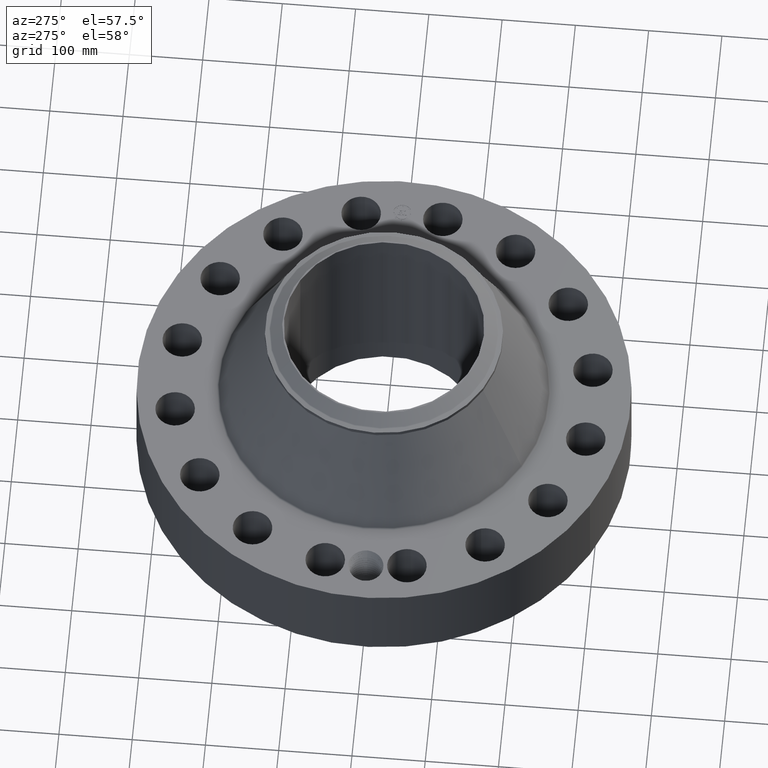
[diagram: clean part render]
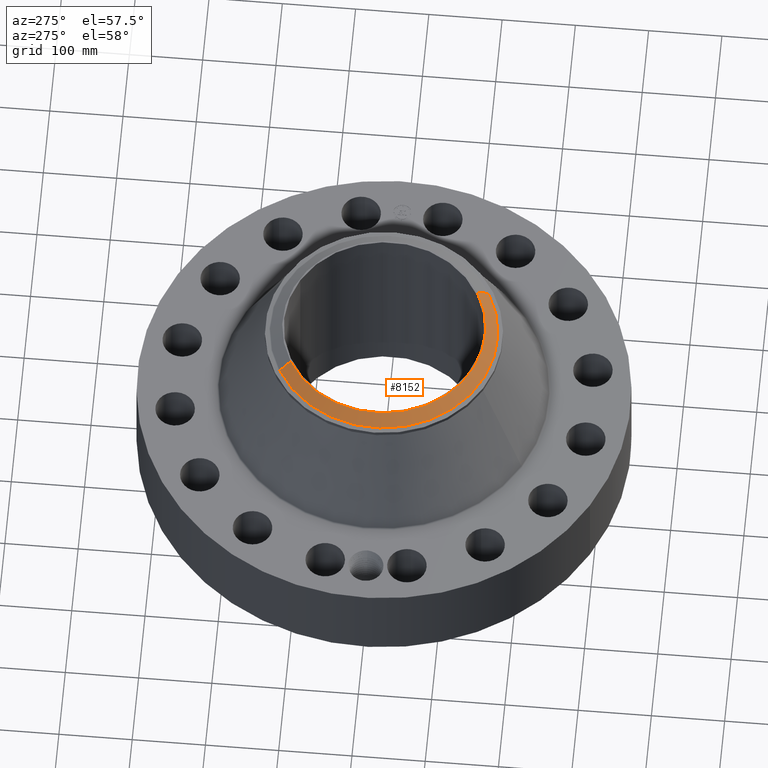
[diagram: same view with one face highlighted and labeled with its STEP entity id]
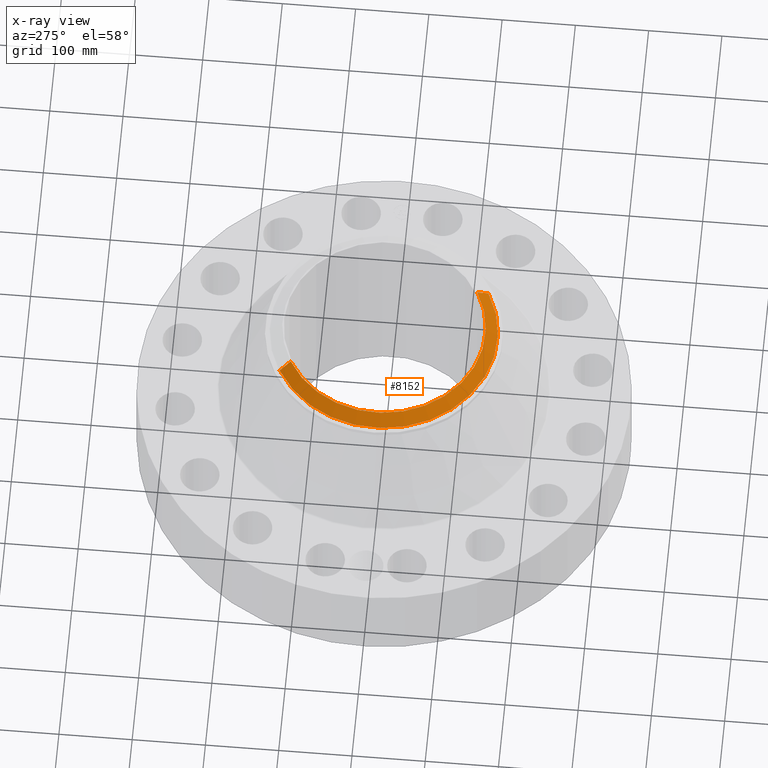
[diagram: x-ray of the same camera — body ghosted, the highlighted face saturated]
A machine part, auxiliary view. The second image highlights one B-rep face of the part: STEP entity #8152.
The next image is the same camera in x-ray: the body ghosted, the highlighted face saturated — about 0% of this face is hidden behind the body in this view.
In plain terms, the highlighted conical surface has half-angle 52.5 deg.
Its self-contained STEP definition (entity closure, byte-faithful):
#4574=AXIS2_PLACEMENT_3D('Circle Axis2P3D',#4572,#4573,$) ;
#8125=AXIS2_PLACEMENT_3D('Cone Axis2P3D',#8122,#8123,#8124) ;
#8136=AXIS2_PLACEMENT_3D('Circle Axis2P3D',#8134,#8135,$) ;
#4567=CARTESIAN_POINT('Vertex',(2.61466231242,-4.7861072593,11.37)) ;
#4569=CARTESIAN_POINT('Vertex',(-2.61466231242,4.7861072593,11.37)) ;
#4572=CARTESIAN_POINT('Axis2P3D Location',(0.,0.,11.37)) ;
#8122=CARTESIAN_POINT('Axis2P3D Location',(0.,0.,11.37)) ;
#8127=CARTESIAN_POINT('Line Origine',(-2.76960361497,5.06972541121,11.1220143726)) ;
#8131=CARTESIAN_POINT('Vertex',(-2.92454491752,5.35334356311,10.8740287452)) ;
#8134=CARTESIAN_POINT('Axis2P3D Location',(0.,0.,10.8740287452)) ;
#8138=CARTESIAN_POINT('Vertex',(2.92454491752,-5.35334356311,10.8740287452)) ;
#8141=CARTESIAN_POINT('Line Origine',(2.76960361497,-5.06972541121,11.1220143726)) ;
#4573=DIRECTION('Axis2P3D Direction',(0.,0.,-0.0393700787402)) ;
#8123=DIRECTION('Axis2P3D Direction',(-0.,-0.,-0.0393700787402)) ;
#8124=DIRECTION('Axis2P3D XDirection',(-0.0188750212049,0.0345504945626,0.)) ;
#8128=DIRECTION('Vector Direction',(-0.014974561121,0.02741075027,-0.023966985394)) ;
#8135=DIRECTION('Axis2P3D Direction',(0.,0.,-0.0393700787402)) ;
#8142=DIRECTION('Vector Direction',(0.014974561121,-0.02741075027,-0.023966985394)) ;
#8129=VECTOR('Line Direction',#8128,0.0393700787402) ;
#8143=VECTOR('Line Direction',#8142,0.0393700787402) ;
#8147=ORIENTED_EDGE('',*,*,#4576,.F.) ;
#8148=ORIENTED_EDGE('',*,*,#8133,.T.) ;
#8149=ORIENTED_EDGE('',*,*,#8140,.T.) ;
#8150=ORIENTED_EDGE('',*,*,#8145,.F.) ;
#8152=ADVANCED_FACE('PartBody',(#8151),#8126,.T.) ;
#4575=CIRCLE('generated circle',#4574,5.4537401575) ;
#8137=CIRCLE('generated circle',#8136,6.10010248105) ;
#8126=CONICAL_SURFACE('Cone',#8125,5.4537401575,0.916297857297) ;
#4576=EDGE_CURVE('',#4570,#4568,#4575,.F.) ;
#8133=EDGE_CURVE('',#4570,#8132,#8130,.T.) ;
#8140=EDGE_CURVE('',#8132,#8139,#8137,.F.) ;
#8145=EDGE_CURVE('',#4568,#8139,#8144,.T.) ;
#8146=EDGE_LOOP('',(#8147,#8148,#8149,#8150)) ;
#8151=FACE_OUTER_BOUND('',#8146,.T.) ;
#8130=LINE('Line',#8127,#8129) ;
#8144=LINE('Line',#8141,#8143) ;
#4568=VERTEX_POINT('',#4567) ;
#4570=VERTEX_POINT('',#4569) ;
#8132=VERTEX_POINT('',#8131) ;
#8139=VERTEX_POINT('',#8138) ;